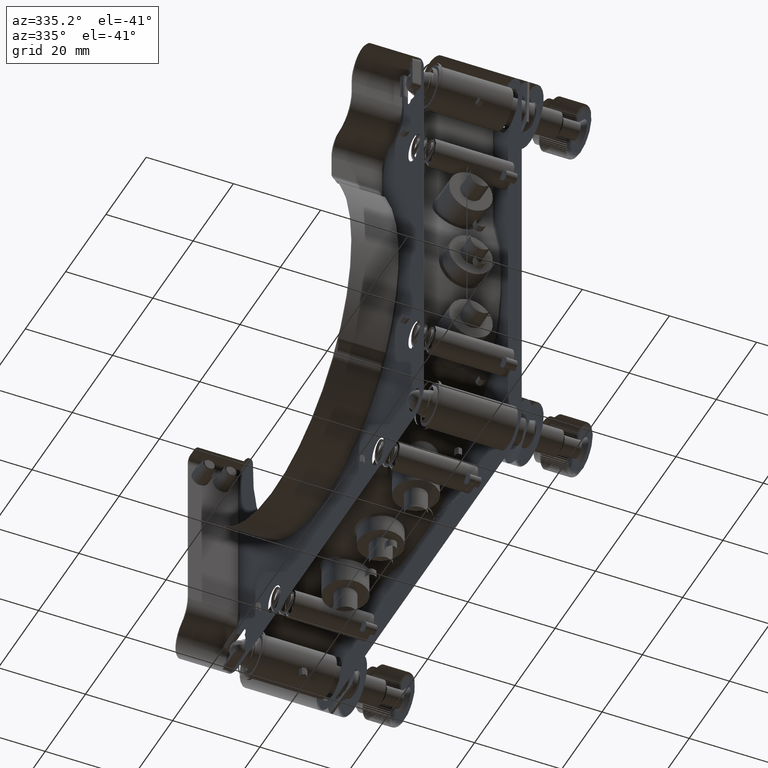
[diagram: clean part render]
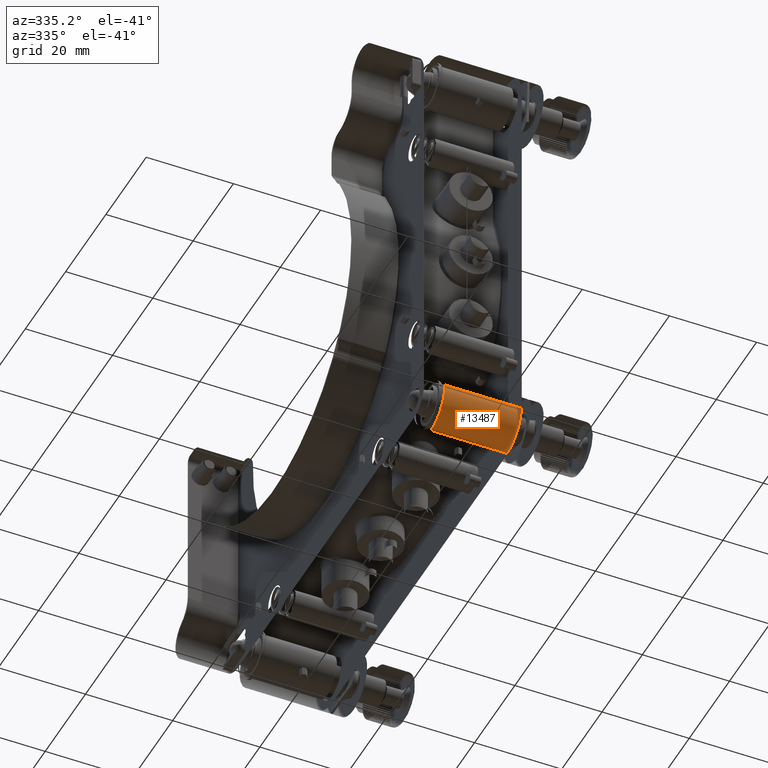
[diagram: same view with one face highlighted and labeled with its STEP entity id]
A machine part, auxiliary view. The second image highlights one B-rep face of the part: STEP entity #13487.
In plain terms, the highlighted cylindrical surface (edge-blend (fillet) strip) has radius 7 mm, axis along (-1, 0, 0).
Its self-contained STEP definition (entity closure, byte-faithful):
#763 = ORIENTED_EDGE ( 'NONE', *, *, #16397, .F. ) ;
#876 = CIRCLE ( 'NONE', #44993, 7.000000000037926995 ) ;
#2992 = VERTEX_POINT ( 'NONE', #11015 ) ;
#3635 = EDGE_CURVE ( 'NONE', #50734, #21912, #876, .T. ) ;
#4085 = DIRECTION ( 'NONE',  ( -1.000000000000000000, -0.000000000000000000, -0.000000000000000000 ) ) ;
#4741 = CARTESIAN_POINT ( 'NONE',  ( 8.749999999999998224, -43.79999999999999005, -50.79999999999999716 ) ) ;
#6504 = ORIENTED_EDGE ( 'NONE', *, *, #3635, .T. ) ;
#6739 = CYLINDRICAL_SURFACE ( 'NONE', #46436, 6.999999999999999112 ) ;
#6878 = CIRCLE ( 'NONE', #44054, 6.999999999999999112 ) ;
#9958 = LINE ( 'NONE', #33832, #52408 ) ;
#11015 = CARTESIAN_POINT ( 'NONE',  ( 8.749999999976694198, -50.80000000000947580, -43.80000000000000426 ) ) ;
#11354 = DIRECTION ( 'NONE',  ( -1.000000000000000000, 0.000000000000000000, 0.000000000000000000 ) ) ;
#12634 = VERTEX_POINT ( 'NONE', #4741 ) ;
#12981 = CARTESIAN_POINT ( 'NONE',  ( 9.000000000000001776, -43.79999999999999005, -50.79999999999999716 ) ) ;
#13487 = ADVANCED_FACE ( 'NONE', ( #52479 ), #6739, .F. ) ;
#15238 = LINE ( 'NONE', #12981, #18153 ) ;
#16313 = CARTESIAN_POINT ( 'NONE',  ( -8.750000000020463631, -43.79999999999999005, -43.79999999999999716 ) ) ;
#16397 = EDGE_CURVE ( 'NONE', #2992, #21912, #9958, .T. ) ;
#18153 = VECTOR ( 'NONE', #27979, 1000.000000000000000 ) ;
#18766 = CARTESIAN_POINT ( 'NONE',  ( -8.750000000024435565, -50.79999999999053273, -43.80000000000001847 ) ) ;
#21912 = VERTEX_POINT ( 'NONE', #18766 ) ;
#21955 = EDGE_CURVE ( 'NONE', #50734, #12634, #15238, .T. ) ;
#24272 = EDGE_CURVE ( 'NONE', #12634, #2992, #6878, .T. ) ;
#24445 = DIRECTION ( 'NONE',  ( 0.000000000000000000, 0.000000000000000000, -1.000000000000000000 ) ) ;
#27364 = DIRECTION ( 'NONE',  ( 0.000000000000000000, 0.000000000000000000, 1.000000000000000000 ) ) ;
#27979 = DIRECTION ( 'NONE',  ( 1.000000000000000000, 0.000000000000000000, 0.000000000000000000 ) ) ;
#28011 = ORIENTED_EDGE ( 'NONE', *, *, #21955, .F. ) ;
#33552 = DIRECTION ( 'NONE',  ( -1.000000000000000000, 0.000000000000000000, 0.000000000000000000 ) ) ;
#33832 = CARTESIAN_POINT ( 'NONE',  ( 9.000000000000001776, -50.79999999999999005, -43.80000000000000426 ) ) ;
#36829 = EDGE_LOOP ( 'NONE', ( #28011, #6504, #763, #42350 ) ) ;
#37890 = CARTESIAN_POINT ( 'NONE',  ( 8.749999999999998224, -43.79999999999999005, -43.79999999999999716 ) ) ;
#38684 = DIRECTION ( 'NONE',  ( -1.000000000000000000, 0.000000000000000000, 0.000000000000000000 ) ) ;
#42350 = ORIENTED_EDGE ( 'NONE', *, *, #24272, .F. ) ;
#44054 = AXIS2_PLACEMENT_3D ( 'NONE', #37890, #38684, #46822 ) ;
#44110 = CARTESIAN_POINT ( 'NONE',  ( 9.000000000000001776, -43.79999999999999005, -43.79999999999999716 ) ) ;
#44993 = AXIS2_PLACEMENT_3D ( 'NONE', #16313, #4085, #24445 ) ;
#46436 = AXIS2_PLACEMENT_3D ( 'NONE', #44110, #11354, #27364 ) ;
#46822 = DIRECTION ( 'NONE',  ( 0.000000000000000000, 0.000000000000000000, 1.000000000000000000 ) ) ;
#49790 = CARTESIAN_POINT ( 'NONE',  ( -8.750000000005105250, -43.80000000000004690, -50.80000000000947580 ) ) ;
#50734 = VERTEX_POINT ( 'NONE', #49790 ) ;
#52408 = VECTOR ( 'NONE', #33552, 1000.000000000000000 ) ;
#52479 = FACE_OUTER_BOUND ( 'NONE', #36829, .T. ) ;